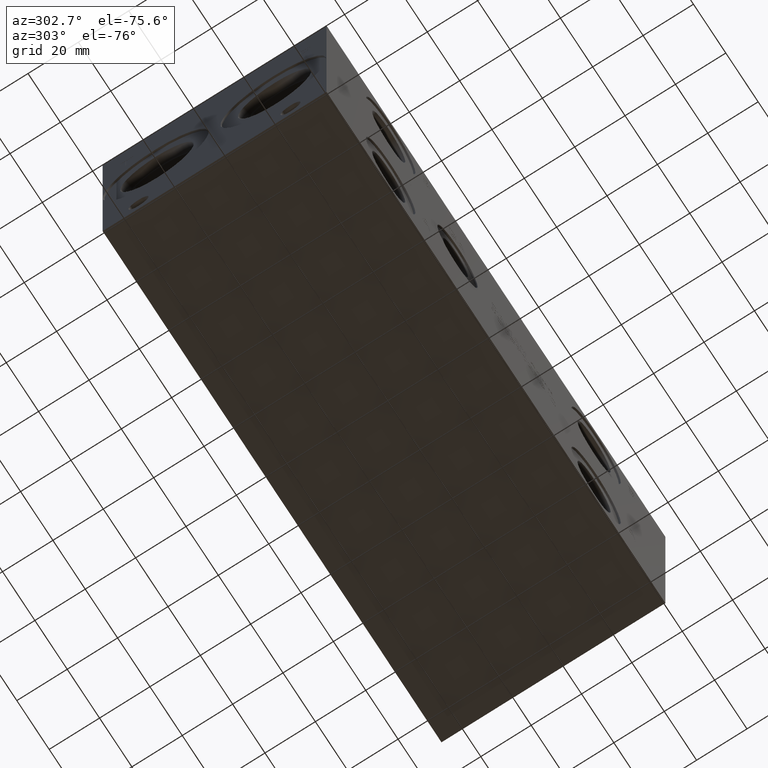
[diagram: clean part render]
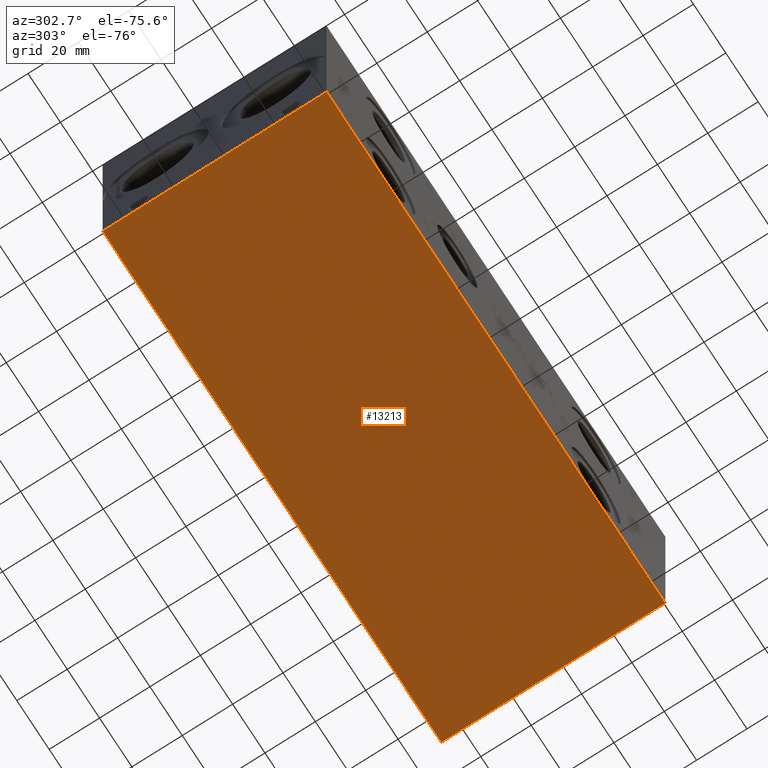
[diagram: same view with one face highlighted and labeled with its STEP entity id]
A machine part, auxiliary view. The second image highlights one B-rep face of the part: STEP entity #13213.
In plain terms, the highlighted planar face has unit normal (0, 0, 1).
Its self-contained STEP definition (entity closure, byte-faithful):
#1789=FACE_OUTER_BOUND('',#2579,.T.);
#2579=EDGE_LOOP('',(#11680,#11681,#11682,#11683));
#2636=LINE('',#17124,#3804);
#2696=LINE('',#17399,#3864);
#3001=LINE('',#19888,#4169);
#3746=LINE('',#22920,#4914);
#3804=VECTOR('',#14148,10.);
#3864=VECTOR('',#14262,10.);
#4169=VECTOR('',#14735,10.);
#4914=VECTOR('',#16860,10.);
#4964=VERTEX_POINT('',#17122);
#4965=VERTEX_POINT('',#17123);
#5024=VERTEX_POINT('',#17397);
#5025=VERTEX_POINT('',#17398);
#6251=EDGE_CURVE('',#4964,#4965,#2636,.T.);
#6335=EDGE_CURVE('',#5024,#5025,#2696,.T.);
#6866=EDGE_CURVE('',#5025,#4964,#3001,.T.);
#8012=EDGE_CURVE('',#4965,#5024,#3746,.T.);
#11680=ORIENTED_EDGE('',*,*,#6866,.F.);
#11681=ORIENTED_EDGE('',*,*,#6335,.F.);
#11682=ORIENTED_EDGE('',*,*,#8012,.F.);
#11683=ORIENTED_EDGE('',*,*,#6251,.F.);
#12046=PLANE('',#14051);
#13213=ADVANCED_FACE('',(#1789),#12046,.F.);
#14051=AXIS2_PLACEMENT_3D('',#22925,#16868,#16869);
#14148=DIRECTION('',(0.,1.,0.));
#14262=DIRECTION('',(0.,-1.,0.));
#14735=DIRECTION('',(1.,0.,0.));
#16860=DIRECTION('',(-1.,0.,0.));
#16868=DIRECTION('center_axis',(0.,0.,1.));
#16869=DIRECTION('ref_axis',(1.,0.,0.));
#17122=CARTESIAN_POINT('',(209.55,0.,0.));
#17123=CARTESIAN_POINT('',(209.55,88.9,0.));
#17124=CARTESIAN_POINT('',(209.55,0.,0.));
#17397=CARTESIAN_POINT('',(0.,88.9,0.));
#17398=CARTESIAN_POINT('',(0.,0.,0.));
#17399=CARTESIAN_POINT('',(0.,88.9,0.));
#19888=CARTESIAN_POINT('',(0.,0.,0.));
#22920=CARTESIAN_POINT('',(209.55,88.9,0.));
#22925=CARTESIAN_POINT('Origin',(104.775,44.45,0.));